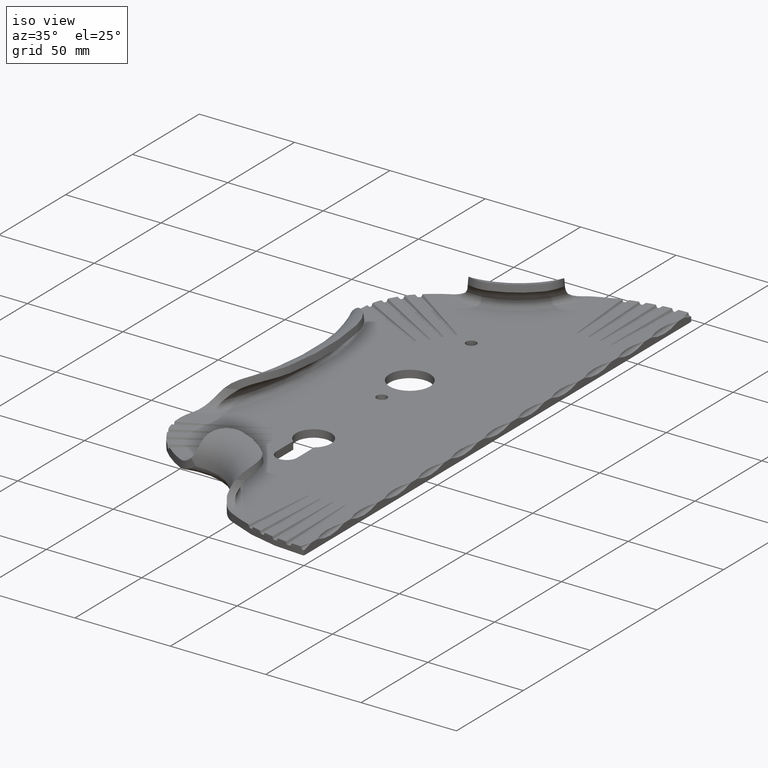
[diagram: clean part render]
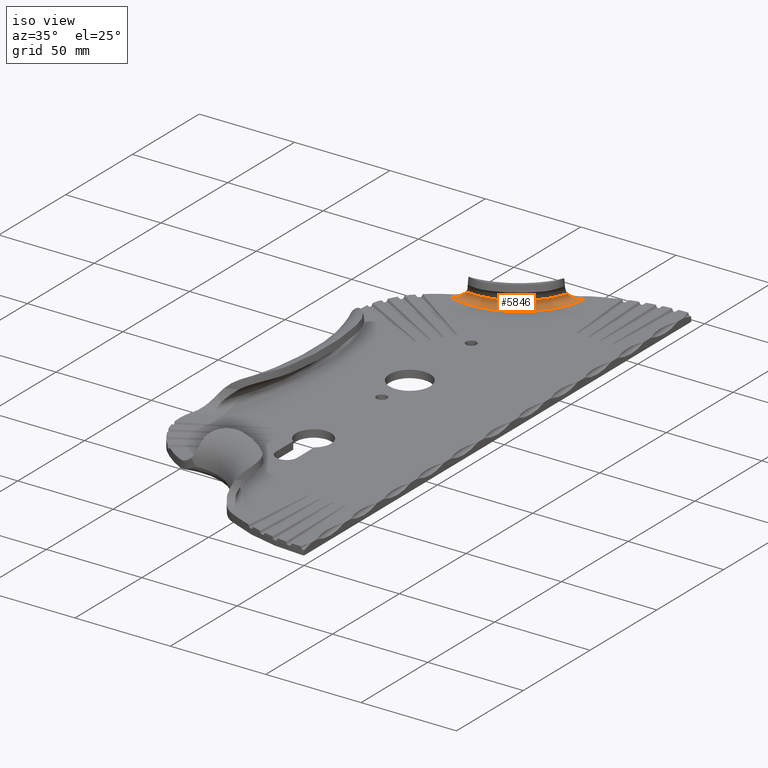
[diagram: same view with one face highlighted and labeled with its STEP entity id]
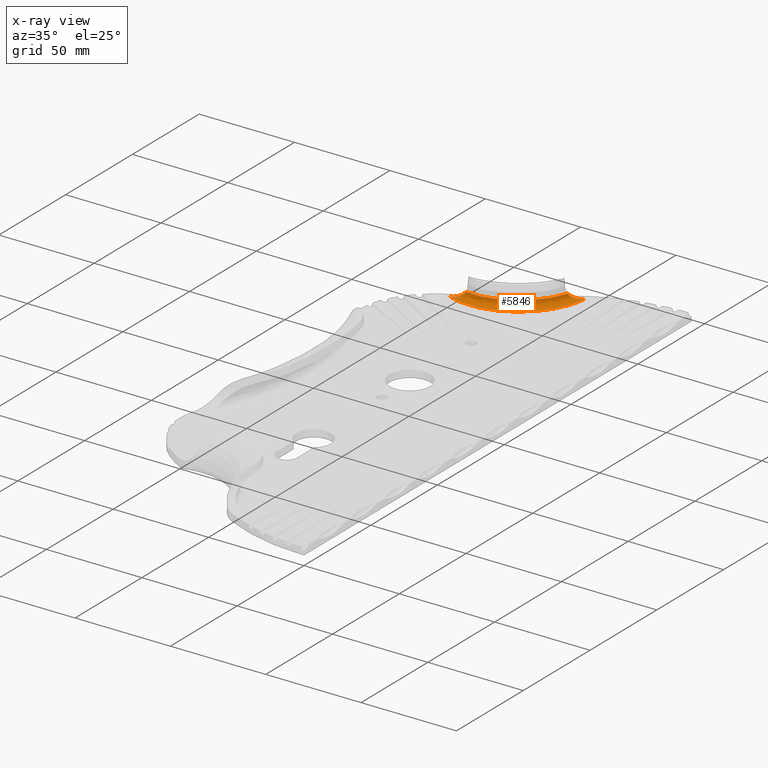
[diagram: x-ray of the same camera — body ghosted, the highlighted face saturated]
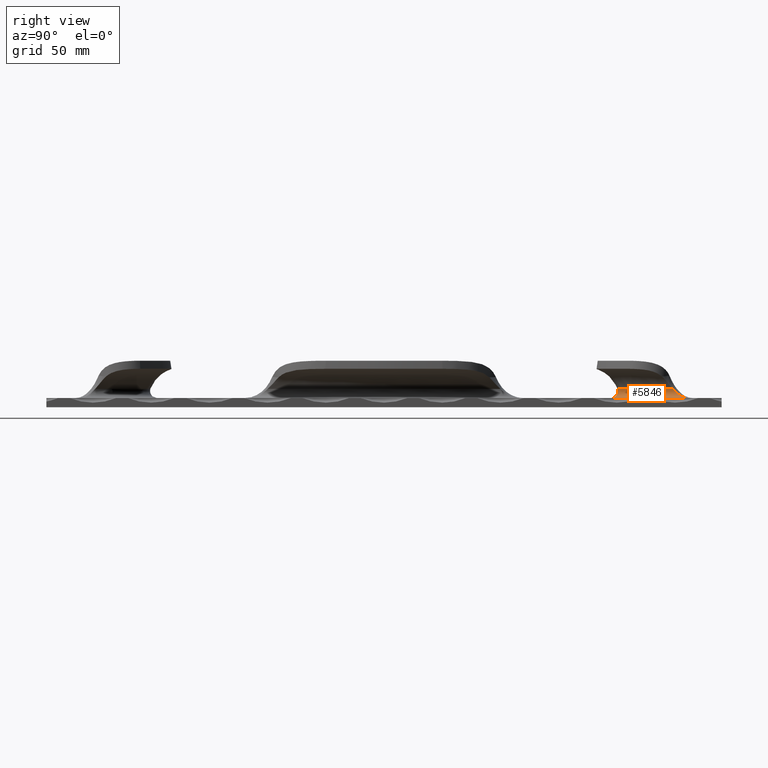
[diagram: same view with one face highlighted and labeled with its STEP entity id]
A machine part, iso view. The second image highlights one B-rep face of the part: STEP entity #5846.
The next image is the same camera in x-ray: the body ghosted, the highlighted face saturated — about 0% of this face is hidden behind the body in this view.
A second angle (right view) of the same face is appended — the face is thin or edge-on in the first view.
In plain terms, the highlighted toroidal blend (fillet) surface has major radius 37.2214 mm and minor (blend) radius 3 mm.
Its self-contained STEP definition (entity closure, byte-faithful):
#5 = EDGE_CURVE ( 'NONE', #10139, #12937, #3052, .T. ) ;
#429 = DIRECTION ( 'NONE',  ( 0.0000000000000000000, 0.0000000000000000000, 1.000000000000000000 ) ) ;
#953 = EDGE_LOOP ( 'NONE', ( #6913, #17180, #18831, #16328 ) ) ;
#1346 = CARTESIAN_POINT ( 'NONE',  ( -50.02396899953659900, 269.5676815131543000, 7.369677786851890600 ) ) ;
#1532 = CARTESIAN_POINT ( 'NONE',  ( -49.01905593411613900, 271.7086243776890900, 5.395303523756731500 ) ) ;
#2412 = CARTESIAN_POINT ( 'NONE',  ( -91.13824696414756900, 245.2729101981711000, 4.702304731000667800 ) ) ;
#2887 = EDGE_CURVE ( 'NONE', #15533, #12937, #14971, .T. ) ;
#2967 = CARTESIAN_POINT ( 'NONE',  ( -45.75215232231568800, 275.7268879909343600, 4.000000000000000000 ) ) ;
#3052 = CIRCLE ( 'NONE', #12175, 37.22141758949842200 ) ;
#3159 = DIRECTION ( 'NONE',  ( -1.000000000000000000, 0.0000000000000000000, 0.0000000000000000000 ) ) ;
#3365 = VERTEX_POINT ( 'NONE', #15314 ) ;
#3380 = AXIS2_PLACEMENT_3D ( 'NONE', #5078, #15295, #3881 ) ;
#3727 = CARTESIAN_POINT ( 'NONE',  ( -94.60368783140268100, 244.3297683338984100, 3.999999999999999100 ) ) ;
#3881 = DIRECTION ( 'NONE',  ( -1.000000000000000000, 0.0000000000000000000, 0.0000000000000000000 ) ) ;
#4337 = CARTESIAN_POINT ( 'NONE',  ( -50.05755567161625700, 269.3033907727511900, 7.650337598915233400 ) ) ;
#5078 = CARTESIAN_POINT ( 'NONE',  ( -82.78054850216793200, 279.5126248702916900, 7.000000000000000000 ) ) ;
#5274 = EDGE_CURVE ( 'NONE', #10139, #3365, #10133, .T. ) ;
#5846 = ADVANCED_FACE ( 'NONE', ( #8558 ), #15763, .F. ) ;
#5956 = CARTESIAN_POINT ( 'NONE',  ( -49.77968372900772200, 270.3683372958526500, 6.559544755586100200 ) ) ;
#6624 = CARTESIAN_POINT ( 'NONE',  ( -86.91485732094651000, 245.3918862621104600, 7.933333333333340700 ) ) ;
#6686 = CARTESIAN_POINT ( 'NONE',  ( -92.92287342224935300, 244.7845896447841200, 4.179474362763209600 ) ) ;
#6806 = CARTESIAN_POINT ( 'NONE',  ( -91.83756785392770900, 245.0834426659095900, 4.443485413257549000 ) ) ;
#6913 = ORIENTED_EDGE ( 'NONE', *, *, #10927, .F. ) ;
#7052 = DIRECTION ( 'NONE',  ( 1.000000000000000000, 0.0000000000000000000, 0.0000000000000000000 ) ) ;
#7692 = AXIS2_PLACEMENT_3D ( 'NONE', #14667, #429, #3159 ) ;
#8234 = CARTESIAN_POINT ( 'NONE',  ( -94.79087129459343000, 244.2821540560438800, 4.000000000000000000 ) ) ;
#8300 = CARTESIAN_POINT ( 'NONE',  ( -89.77603496572173500, 245.5743609117130300, 5.395260504240803300 ) ) ;
#8558 = FACE_OUTER_BOUND ( 'NONE', #953, .T. ) ;
#8845 = CARTESIAN_POINT ( 'NONE',  ( -47.71274447405880200, 273.3772327604709200, 4.443524815627164100 ) ) ;
#8899 = CARTESIAN_POINT ( 'NONE',  ( -46.74682891441737800, 274.5260134594040600, 4.091496513224149600 ) ) ;
#9538 = CARTESIAN_POINT ( 'NONE',  ( -93.29210111442596100, 244.6818643339621500, 4.112302016675862100 ) ) ;
#9618 = CARTESIAN_POINT ( 'NONE',  ( -94.41384476113748300, 244.3792078931385300, 4.005650147487050300 ) ) ;
#10133 = B_SPLINE_CURVE_WITH_KNOTS ( 'NONE', 3,
 ( #2967, #12964, #8899, #8845, #10292, #1532, #13153, #5956, #16076, #1346, #4337, #14671 ),
 .UNSPECIFIED., .F., .F.,
 ( 4, 2, 2, 2, 2, 4 ),
 ( -2.209980764193468400E-005, 0.002315778505280628600, 0.004653656818203191800, 0.006991535131125755300, 0.008160474287586977700, 0.009329413444048199200 ),
 .UNSPECIFIED. ) ;
#10139 = VERTEX_POINT ( 'NONE', #11252 ) ;
#10292 = CARTESIAN_POINT ( 'NONE',  ( -48.17672053112530500, 272.8207721890423200, 4.702347323494557900 ) ) ;
#10927 = EDGE_CURVE ( 'NONE', #15533, #3365, #13149, .T. ) ;
#11252 = CARTESIAN_POINT ( 'NONE',  ( -45.75215232231568800, 275.7268879909343600, 4.000000000000000000 ) ) ;
#12175 = AXIS2_PLACEMENT_3D ( 'NONE', #12614, #17206, #7052 ) ;
#12561 = CARTESIAN_POINT ( 'NONE',  ( -87.95156344151810400, 245.6903832562865100, 6.825419879949955700 ) ) ;
#12614 = CARTESIAN_POINT ( 'NONE',  ( -82.78054850216793200, 279.5126248702916900, 4.000000000000000000 ) ) ;
#12937 = VERTEX_POINT ( 'NONE', #16244 ) ;
#12964 = CARTESIAN_POINT ( 'NONE',  ( -46.24187902923216600, 275.1206984934959200, 4.000000000000000900 ) ) ;
#13149 = CIRCLE ( 'NONE', #7692, 34.37029695211932500 ) ;
#13153 = CARTESIAN_POINT ( 'NONE',  ( -49.38333386512675100, 271.1732781606257800, 5.818186307735389000 ) ) ;
#13881 = CARTESIAN_POINT ( 'NONE',  ( -93.85154374320066500, 244.5292911546480900, 4.044992631704746000 ) ) ;
#14667 = CARTESIAN_POINT ( 'NONE',  ( -82.78054850216793200, 279.5126248702916900, 7.933333333333340700 ) ) ;
#14671 = CARTESIAN_POINT ( 'NONE',  ( -50.04706211032827000, 269.0323490527327400, 7.933333333333340700 ) ) ;
#14971 = B_SPLINE_CURVE_WITH_KNOTS ( 'NONE', 3,
 ( #6624, #16751, #18223, #12561, #18294, #16827, #8300, #2412, #6806, #6686, #9538, #13881, #16893, #9618, #3727, #8234 ),
 .UNSPECIFIED., .F., .F.,
 ( 4, 2, 2, 2, 2, 2, 2, 4 ),
 ( 3.469446951953614200E-018, 0.001158865843466336500, 0.002317731686932669600, 0.004635463373865368600, 0.006953195060798067700, 0.008112060904264417600, 0.008691493825997591300, 0.009270926747730766700 ),
 .UNSPECIFIED. ) ;
#15295 = DIRECTION ( 'NONE',  ( -0.0000000000000000000, -0.0000000000000000000, -1.000000000000000000 ) ) ;
#15314 = CARTESIAN_POINT ( 'NONE',  ( -50.04706211032827000, 269.0323490527327400, 7.933333333333340700 ) ) ;
#15533 = VERTEX_POINT ( 'NONE', #18257 ) ;
#15763 = TOROIDAL_SURFACE ( 'NONE', #3380, 37.22141758949842200, 3.000000000000000000 ) ;
#16076 = CARTESIAN_POINT ( 'NONE',  ( -49.88575493897479900, 270.0990218927786400, 6.825441952804246700 ) ) ;
#16244 = CARTESIAN_POINT ( 'NONE',  ( -94.79087129459343000, 244.2821540560438800, 4.000000000000000000 ) ) ;
#16328 = ORIENTED_EDGE ( 'NONE', *, *, #5274, .T. ) ;
#16751 = CARTESIAN_POINT ( 'NONE',  ( -87.15680200696910200, 245.5145220142489400, 7.650331771685345400 ) ) ;
#16827 = CARTESIAN_POINT ( 'NONE',  ( -89.13750195455493500, 245.6820352576168600, 5.818148601907682700 ) ) ;
#16893 = CARTESIAN_POINT ( 'NONE',  ( -94.03855914962100800, 244.4787926197780900, 4.028148830056934100 ) ) ;
#17180 = ORIENTED_EDGE ( 'NONE', *, *, #2887, .T. ) ;
#17206 = DIRECTION ( 'NONE',  ( -0.0000000000000000000, -0.0000000000000000000, -1.000000000000000000 ) ) ;
#18223 = CARTESIAN_POINT ( 'NONE',  ( -87.41100526534036400, 245.5942796522296600, 7.369666240273517100 ) ) ;
#18257 = CARTESIAN_POINT ( 'NONE',  ( -86.91485732094651000, 245.3918862621104600, 7.933333333333340700 ) ) ;
#18294 = CARTESIAN_POINT ( 'NONE',  ( -88.24058003179128200, 245.7063624589462700, 6.559517812194994400 ) ) ;
#18831 = ORIENTED_EDGE ( 'NONE', *, *, #5, .F. ) ;